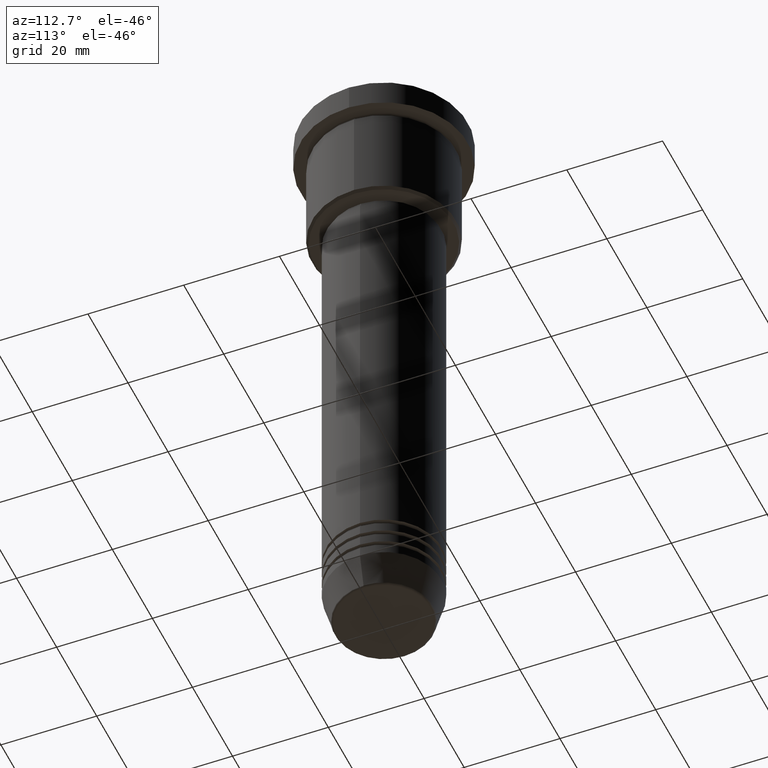
[diagram: clean part render]
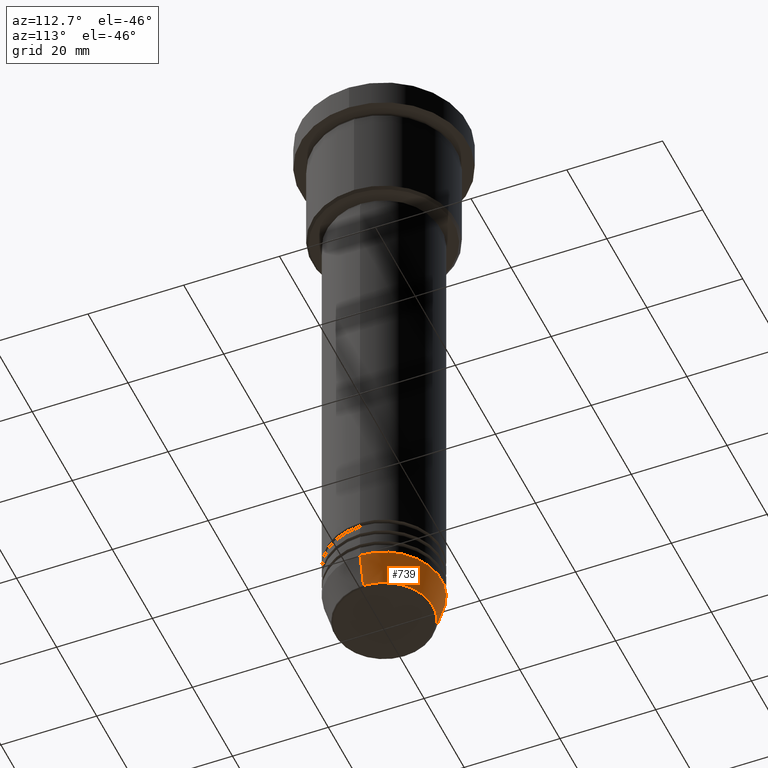
[diagram: same view with one face highlighted and labeled with its STEP entity id]
A machine part, auxiliary view. The second image highlights one B-rep face of the part: STEP entity #739.
In plain terms, the highlighted conical surface has half-angle 15 deg.
Its self-contained STEP definition (entity closure, byte-faithful):
#2 = VECTOR ( 'NONE', #806, 1000.000000000000000 ) ;
#4 = CARTESIAN_POINT ( 'NONE',  ( 0.000000000000000000, 0.000000000000000000, -131.6294095225512422 ) ) ;
#27 = DIRECTION ( 'NONE',  ( -0.000000000000000000, -0.000000000000000000, 1.000000000000000000 ) ) ;
#36 = DIRECTION ( 'NONE',  ( 1.000000000000000000, 0.000000000000000000, 0.000000000000000000 ) ) ;
#64 = EDGE_CURVE ( 'NONE', #1176, #104, #979, .T. ) ;
#79 = EDGE_CURVE ( 'NONE', #104, #918, #92, .T. ) ;
#92 = LINE ( 'NONE', #892, #2 ) ;
#104 = VERTEX_POINT ( 'NONE', #343 ) ;
#120 = CARTESIAN_POINT ( 'NONE',  ( 0.000000000000000000, 0.000000000000000000, -125.0000000000000000 ) ) ;
#162 = EDGE_LOOP ( 'NONE', ( #601, #934, #424, #1051 ) ) ;
#202 = CARTESIAN_POINT ( 'NONE',  ( 12.00000000000000000, 0.000000000000000000, -125.0000000000000000 ) ) ;
#238 = DIRECTION ( 'NONE',  ( 1.000000000000000000, 0.000000000000000000, 0.000000000000000000 ) ) ;
#343 = CARTESIAN_POINT ( 'NONE',  ( -10.22365507213718949, 1.360806402472382744E-15, -131.6294095225512422 ) ) ;
#354 = AXIS2_PLACEMENT_3D ( 'NONE', #4, #706, #620 ) ;
#424 = ORIENTED_EDGE ( 'NONE', *, *, #936, .F. ) ;
#580 = CIRCLE ( 'NONE', #965, 12.00000000000000000 ) ;
#601 = ORIENTED_EDGE ( 'NONE', *, *, #64, .T. ) ;
#604 = DIRECTION ( 'NONE',  ( -0.000000000000000000, -0.000000000000000000, 1.000000000000000000 ) ) ;
#616 = FACE_OUTER_BOUND ( 'NONE', #162, .T. ) ;
#620 = DIRECTION ( 'NONE',  ( 1.000000000000000000, 0.000000000000000000, 0.000000000000000000 ) ) ;
#696 = CARTESIAN_POINT ( 'NONE',  ( -12.00000000000000000, 1.469576158976823947E-15, -125.0000000000000000 ) ) ;
#706 = DIRECTION ( 'NONE',  ( -0.000000000000000000, -0.000000000000000000, 1.000000000000000000 ) ) ;
#739 = ADVANCED_FACE ( 'NONE', ( #616 ), #1089, .T. ) ;
#806 = DIRECTION ( 'NONE',  ( -0.2588190451025213501, 3.169619151431772337E-17, 0.9659258262890680902 ) ) ;
#858 = AXIS2_PLACEMENT_3D ( 'NONE', #120, #27, #36 ) ;
#861 = CARTESIAN_POINT ( 'NONE',  ( 0.000000000000000000, 0.000000000000000000, -125.0000000000000000 ) ) ;
#876 = EDGE_CURVE ( 'NONE', #1176, #955, #1012, .T. ) ;
#892 = CARTESIAN_POINT ( 'NONE',  ( -12.00000000000000000, 1.469576158976823947E-15, -125.0000000000000000 ) ) ;
#918 = VERTEX_POINT ( 'NONE', #696 ) ;
#920 = CARTESIAN_POINT ( 'NONE',  ( 10.22365507213718949, 0.000000000000000000, -131.6294095225512422 ) ) ;
#934 = ORIENTED_EDGE ( 'NONE', *, *, #79, .T. ) ;
#936 = EDGE_CURVE ( 'NONE', #955, #918, #580, .T. ) ;
#955 = VERTEX_POINT ( 'NONE', #1150 ) ;
#965 = AXIS2_PLACEMENT_3D ( 'NONE', #861, #604, #238 ) ;
#979 = CIRCLE ( 'NONE', #354, 10.22365507213718949 ) ;
#1012 = LINE ( 'NONE', #202, #1067 ) ;
#1051 = ORIENTED_EDGE ( 'NONE', *, *, #876, .F. ) ;
#1067 = VECTOR ( 'NONE', #1125, 1000.000000000000000 ) ;
#1089 = CONICAL_SURFACE ( 'NONE', #858, 12.00000000000000000, 0.2617993877991500740 ) ;
#1125 = DIRECTION ( 'NONE',  ( 0.2588190451025213501, 0.000000000000000000, 0.9659258262890680902 ) ) ;
#1150 = CARTESIAN_POINT ( 'NONE',  ( 12.00000000000000000, 0.000000000000000000, -125.0000000000000000 ) ) ;
#1176 = VERTEX_POINT ( 'NONE', #920 ) ;